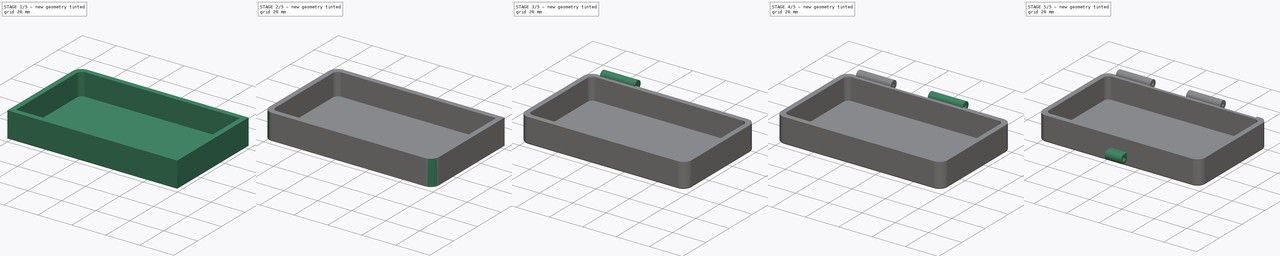
[diagram: build sequence overview — one tinted view per stage of 5, left to right]
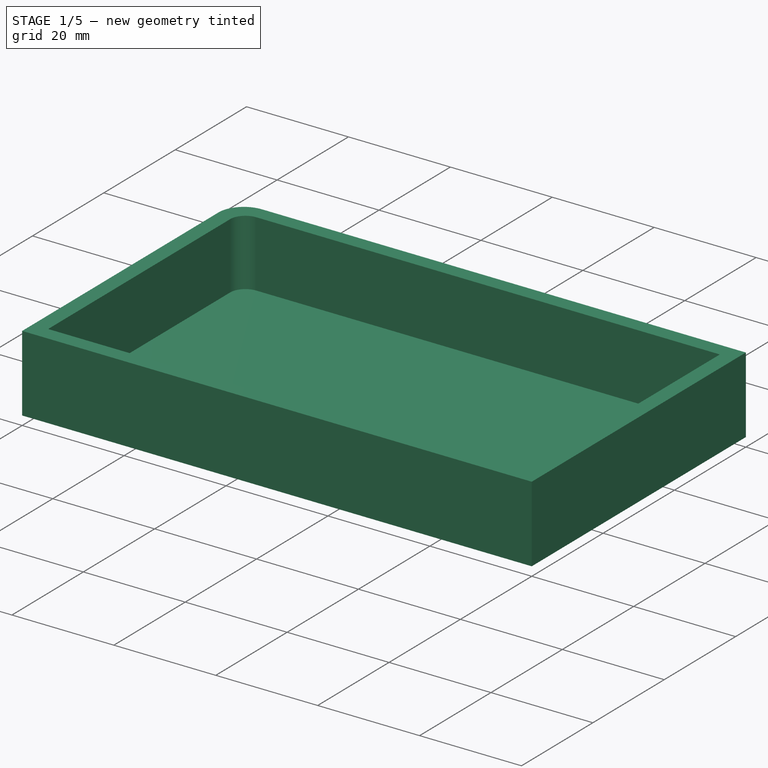
[diagram: stage 1 of 5 — iso view after this stage's code; geometry added in this stage tinted green]
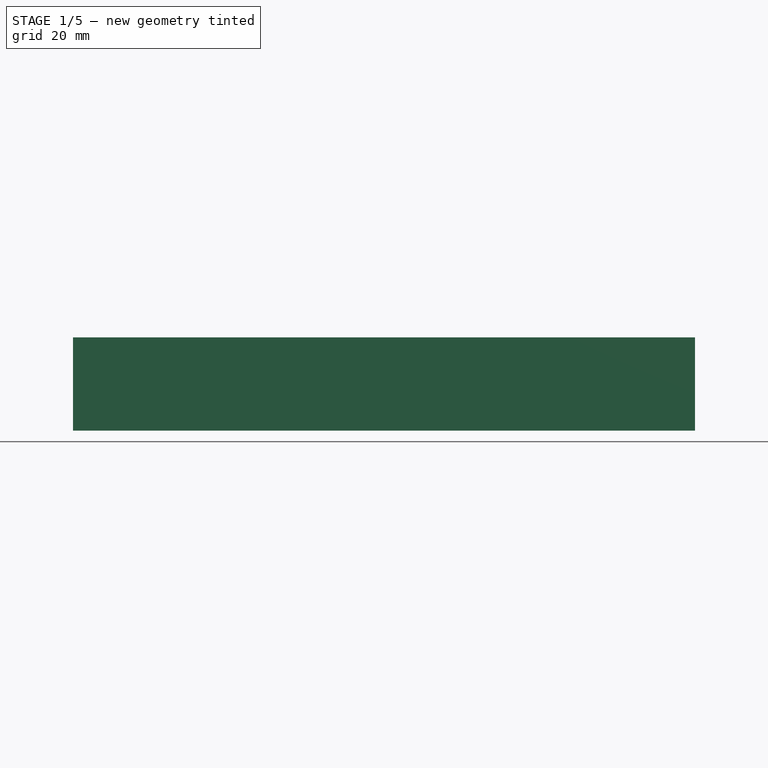
[diagram: stage 1 of 5 — front view after this stage's code; geometry added in this stage tinted green]
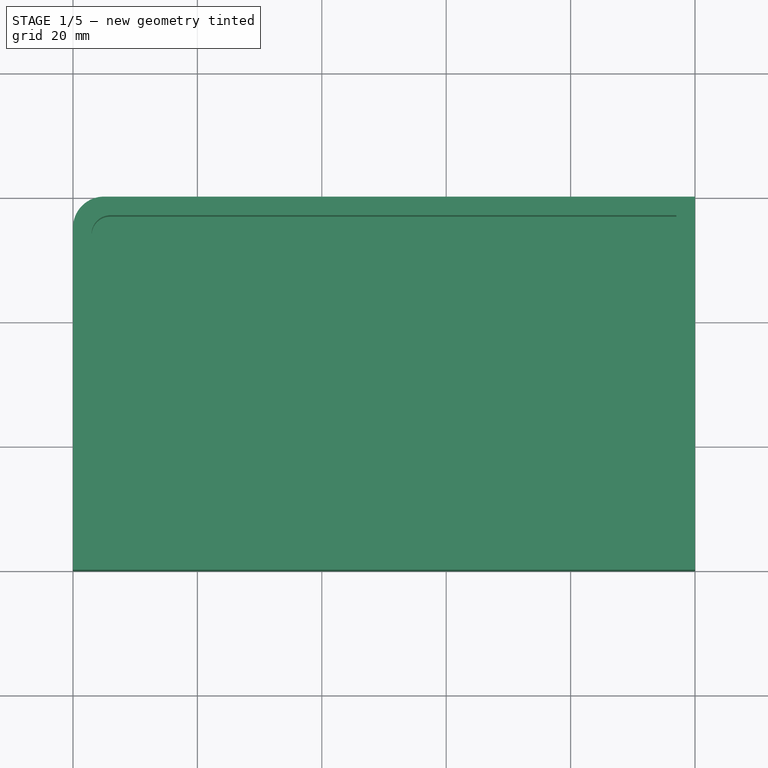
[diagram: stage 1 of 5 — top view after this stage's code; geometry added in this stage tinted green]
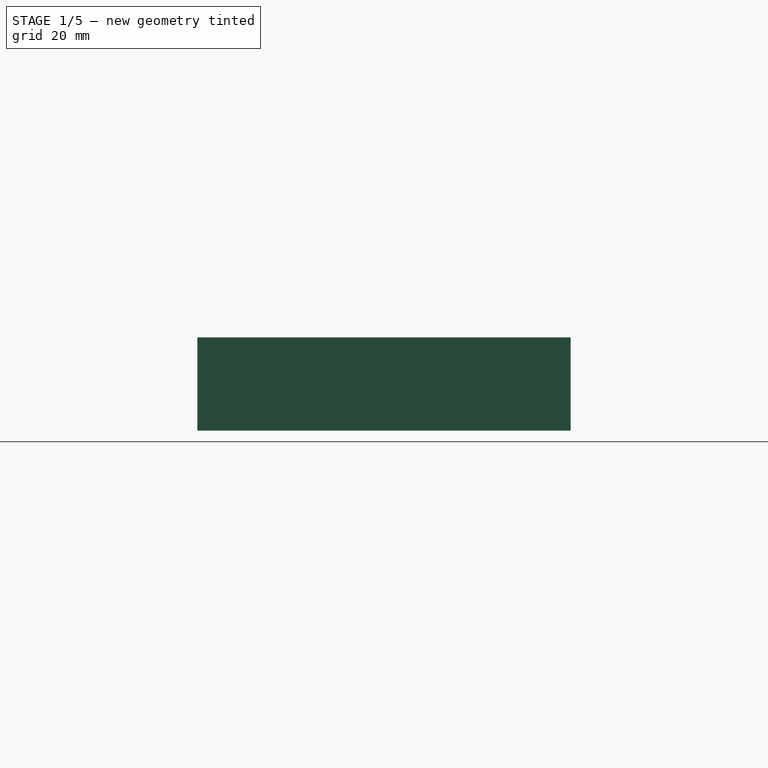
[diagram: stage 1 of 5 — right view after this stage's code; geometry added in this stage tinted green]
FCSTD DOCUMENT  (FreeCAD 0.19R24291 (Git))
Label: funnybox
License: All rights reserved
LicenseURL: http://en.wikipedia.org/wiki/All_rights_reserved
objects: PartDesign::Fillet×9, Sketcher::SketchObject×8, PartDesign::AdditiveCylinder×3, PartDesign::Hole×3, PartDesign::Pad×2, PartDesign::SubtractiveCylinder×2, PartDesign::Pocket×1, PartDesign::Body×1
note: 49 computed .brp shape members not serialized (recipe doc carries the construction recipe); baked Part::Feature solids carry a one-line shape summary decoded from their .brp

FEATURE [Sketcher::SketchObject] Sketch
  FullyConstrained = true
  MapMode = 5
  Support = -> [XY_Plane]
  sketch-geometry (4):
    g0: LineSegment StartX=0 StartY=0 StartZ=0 EndX=100 EndY=0 EndZ=0
    g1: LineSegment StartX=100 StartY=0 StartZ=0 EndX=100 EndY=60 EndZ=0
    g2: LineSegment StartX=100 StartY=60 StartZ=0 EndX=0 EndY=60 EndZ=0
    g3: LineSegment StartX=0 StartY=60 StartZ=0 EndX=0 EndY=0 EndZ=0
  constraints (11):
    c: Coincident(g0,g1)
    c: Coincident(g1,g2)
    c: Coincident(g2,g3)
    c: Coincident(g3,g0)
    c: Horizontal(g0)
    c: Horizontal(g2)
    c: Vertical(g1)
    c: Vertical(g3)
    c: Coincident(g0,g-1)
    c: DistanceY(g3,g3) = 60
    c: DistanceX(g2,g2) = 100
FEATURE [PartDesign::Pad] Pad  label="Main height"
  Direction = (1,1,1)
  Length = 15
  Length2 = 100
  Profile = -> Sketch
  Type = 0
FEATURE [Sketcher::SketchObject] Sketch001
  FullyConstrained = true
  MapMode = 5
  Placement = pos=(0,0,15) rot=(0,0,1;0rad)
  Support = -> [Pad]
  sketch-geometry (4):
    g0: LineSegment StartX=3 StartY=3 StartZ=0 EndX=97 EndY=3 EndZ=0
    g1: LineSegment StartX=97 StartY=3 StartZ=0 EndX=97 EndY=57 EndZ=0
    g2: LineSegment StartX=97 StartY=57 StartZ=0 EndX=3 EndY=57 EndZ=0
    g3: LineSegment StartX=3 StartY=57 StartZ=0 EndX=3 EndY=3 EndZ=0
  constraints (12):
    c: Coincident(g0,g1)
    c: Coincident(g1,g2)
    c: Coincident(g2,g3)
    c: Coincident(g3,g0)
    c: Horizontal(g0)
    c: Horizontal(g2)
    c: Vertical(g1)
    c: Vertical(g3)
    c: DistanceX(g0) = 3
    c: DistanceY(g0) = 3
    c: DistanceX(g0,g0) = 94
    c: DistanceY(g3,g3) = 54
FEATURE [PartDesign::Pocket] Pocket
  BaseFeature = -> Pad
  Length = 13
  Length2 = 100
  Profile = -> Sketch001
  Type = 0
FEATURE [PartDesign::Fillet] Fillet  label="SQ1 Inner"
  Base = -> Pocket [Edge22]
  BaseFeature = -> Pocket
  Radius = 3
  SupportTransform = false
FEATURE [PartDesign::Fillet] Fillet001  label="SQ1 Outer"
  Base = -> Fillet [Edge23]
  BaseFeature = -> Fillet
  Radius = 5
  SupportTransform = false
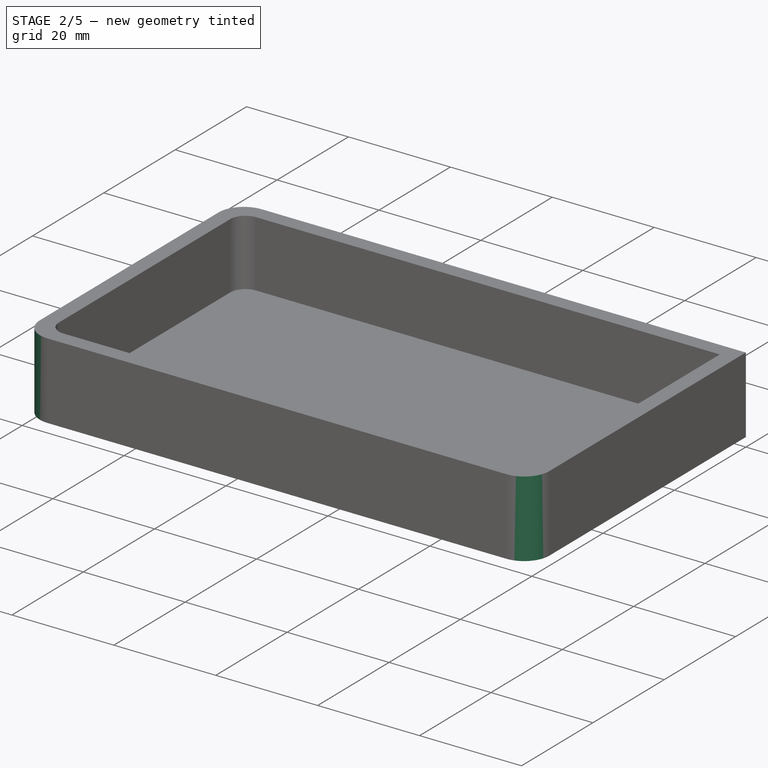
[diagram: stage 2 of 5 — iso view after this stage's code; geometry added in this stage tinted green]
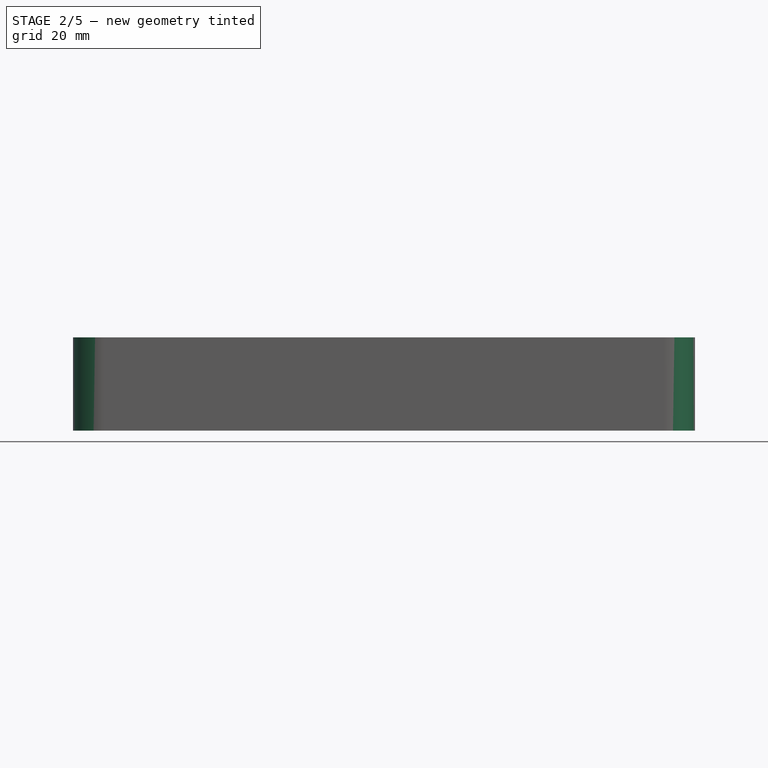
[diagram: stage 2 of 5 — front view after this stage's code; geometry added in this stage tinted green]
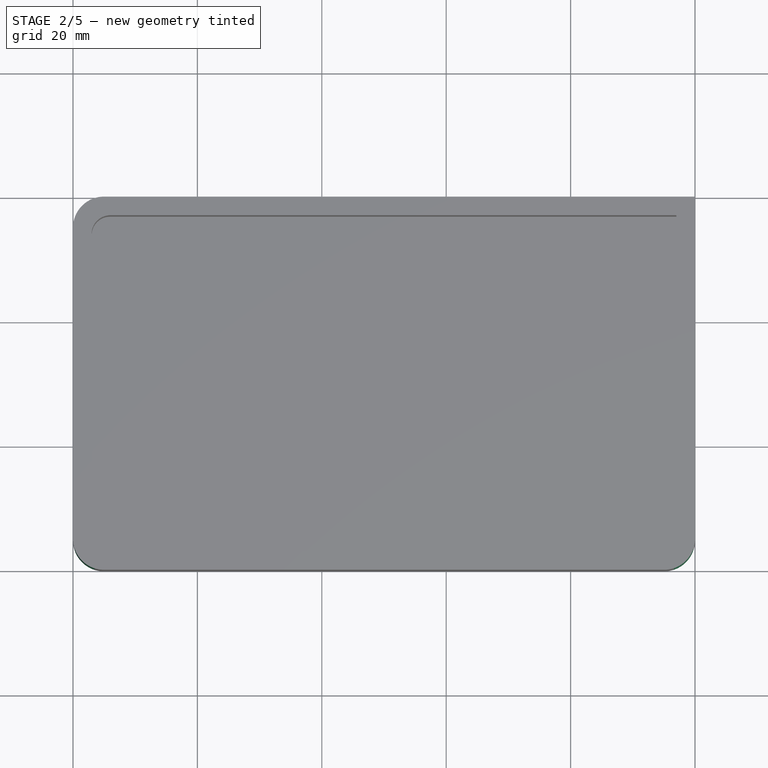
[diagram: stage 2 of 5 — top view after this stage's code; geometry added in this stage tinted green]
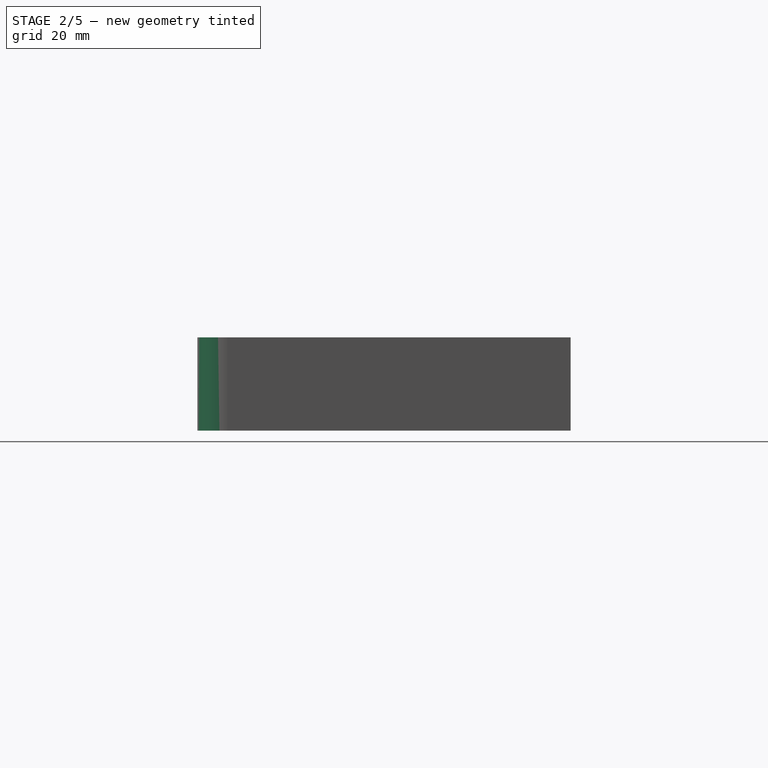
[diagram: stage 2 of 5 — right view after this stage's code; geometry added in this stage tinted green]
FEATURE [PartDesign::Fillet] Fillet002  label="SQ2 Inner"
  Base = -> Fillet001 [Edge28]
  BaseFeature = -> Fillet001
  Radius = 3
  SupportTransform = false
FEATURE [PartDesign::Fillet] Fillet003  label="SQ2 Outer"
  Base = -> Fillet002 [Edge26]
  BaseFeature = -> Fillet002
  Radius = 5
  SupportTransform = false
FEATURE [PartDesign::Fillet] Fillet004  label="SQ3 Inner"
  Base = -> Fillet003 [Edge32]
  BaseFeature = -> Fillet003
  Radius = 3
  SupportTransform = false
FEATURE [PartDesign::Fillet] Fillet005  label="SQ3 Outer"
  Base = -> Fillet004 [Edge36]
  BaseFeature = -> Fillet004
  Radius = 5
  SupportTransform = false
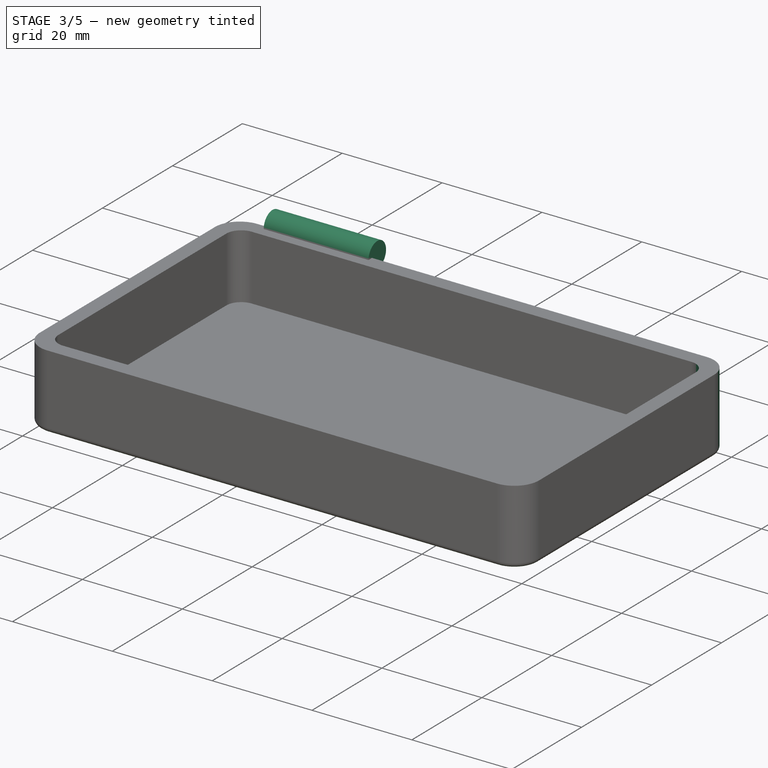
[diagram: stage 3 of 5 — iso view after this stage's code; geometry added in this stage tinted green]
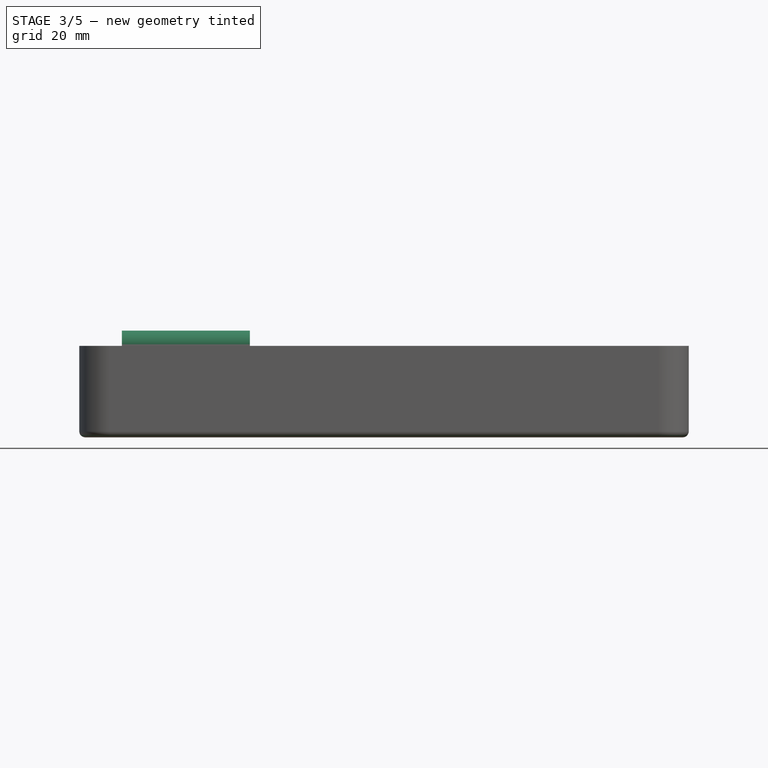
[diagram: stage 3 of 5 — front view after this stage's code; geometry added in this stage tinted green]
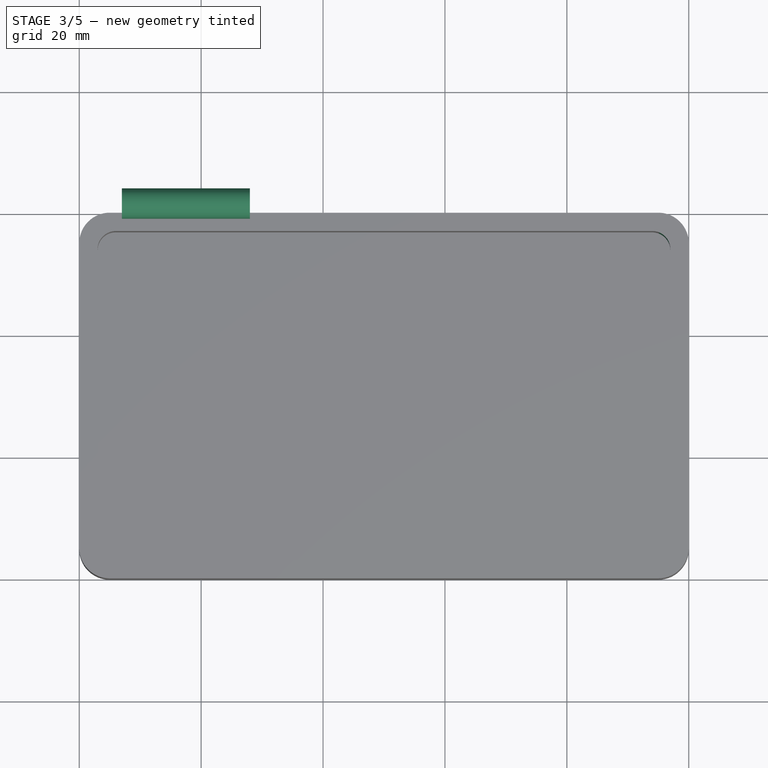
[diagram: stage 3 of 5 — top view after this stage's code; geometry added in this stage tinted green]
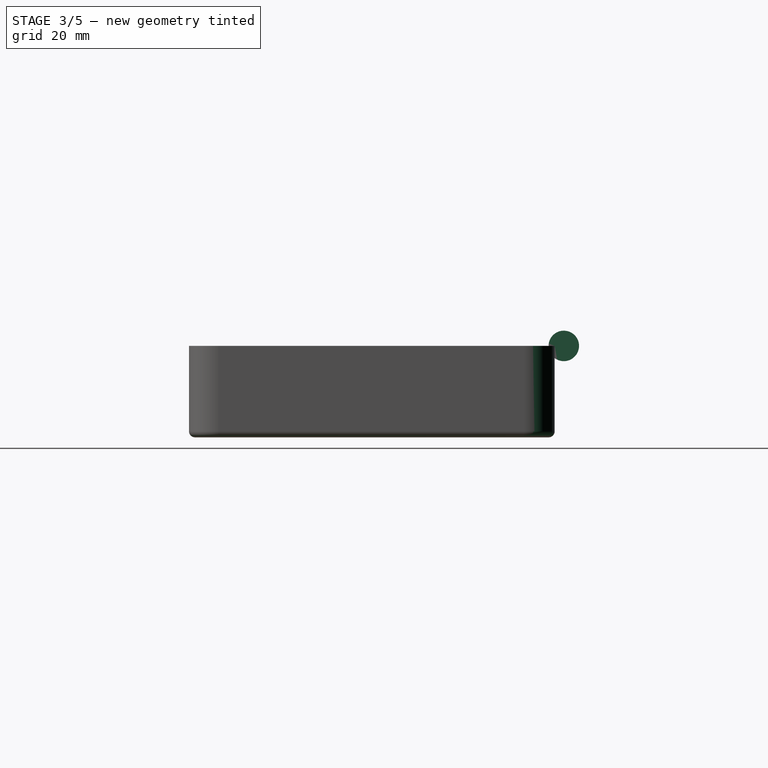
[diagram: stage 3 of 5 — right view after this stage's code; geometry added in this stage tinted green]
FEATURE [PartDesign::Fillet] Fillet006  label="SQ4 Inner"
  Base = -> Fillet005 [Edge36]
  BaseFeature = -> Fillet005
  Radius = 3
  SupportTransform = false
FEATURE [PartDesign::Fillet] Fillet007  label="SQ4 Outer"
  Base = -> Fillet006 [Edge40]
  BaseFeature = -> Fillet006
  Radius = 5
  SupportTransform = false
FEATURE [PartDesign::Fillet] Fillet008  label="Round Base"
  Base = -> Fillet007 [Edge17]
  BaseFeature = -> Fillet007
  Radius = 1
  SupportTransform = false
FEATURE [Sketcher::SketchObject] Sketch003
  FullyConstrained = true
  MapMode = 5
  Placement = pos=(0,0,15.5) rot=(0,0,1;0rad)
  sketch-geometry (1):
    g0: LineSegment StartX=7 StartY=61.5 StartZ=0 EndX=24.2 EndY=61.5 EndZ=0
  constraints (4):
    c: Horizontal(g0)
    c: DistanceX(g0) = 7
    c: DistanceY(g0) = 61.5
    c: DistanceX(g0,g0) = 17.2
FEATURE [PartDesign::AdditiveCylinder] Cylinder
  Angle = 360
  AttacherType = Attacher::AttachEngine3D
  AttachmentOffset = pos=(0,-0.5,-21) rot=(0,0,1;0rad)
  BaseFeature = -> Fillet008
  Height = 21
  MapMode = 7
  Placement = pos=(28,61.5,15) rot=(0.57735,-0.57735,-0.57735;2.0944rad)
  Radius = 2.5
  Support = -> [Sketch003]
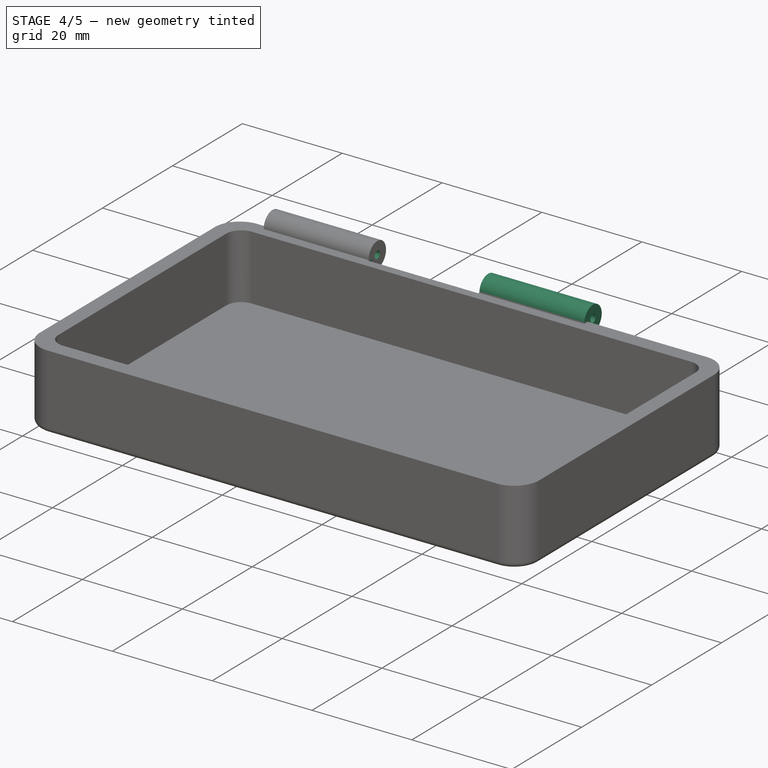
[diagram: stage 4 of 5 — iso view after this stage's code; geometry added in this stage tinted green]
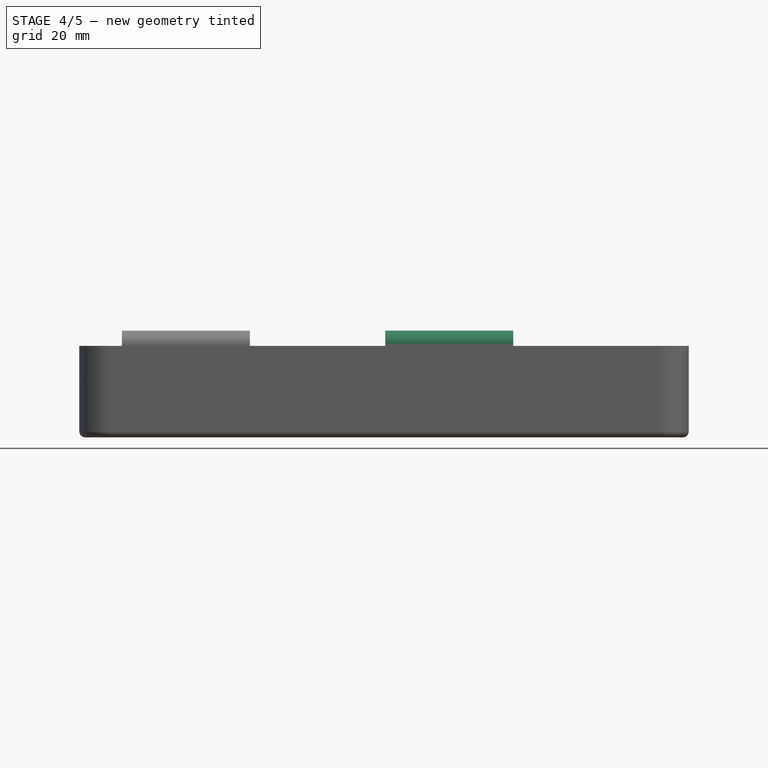
[diagram: stage 4 of 5 — front view after this stage's code; geometry added in this stage tinted green]
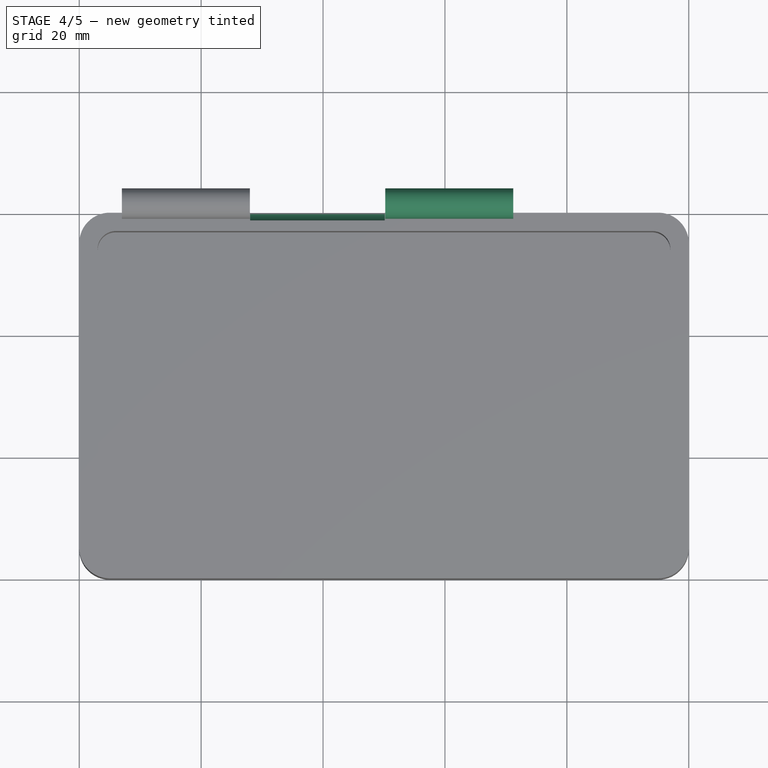
[diagram: stage 4 of 5 — top view after this stage's code; geometry added in this stage tinted green]
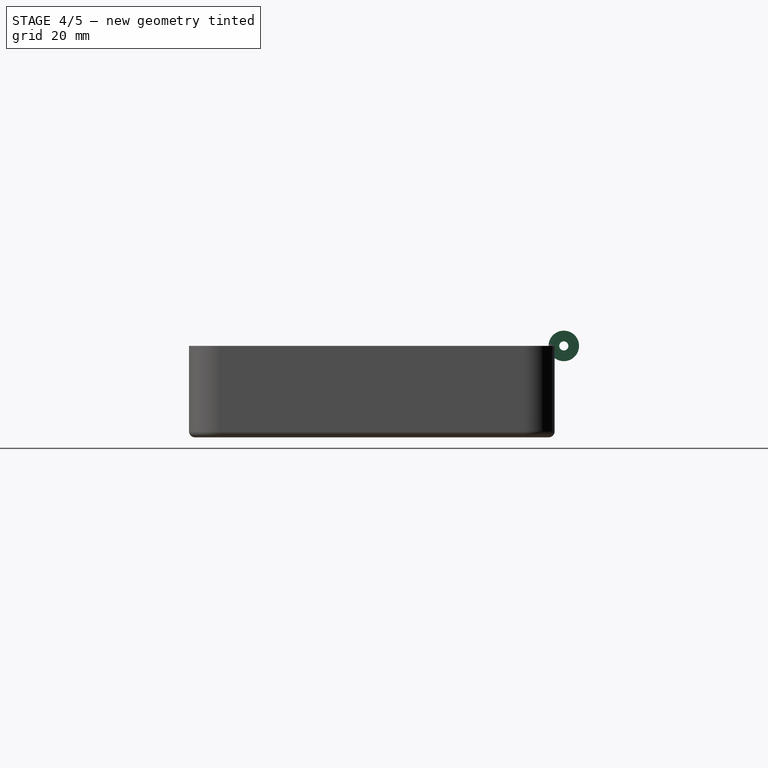
[diagram: stage 4 of 5 — right view after this stage's code; geometry added in this stage tinted green]
FEATURE [Sketcher::SketchObject] Sketch004
  FullyConstrained = true
  MapMode = 5
  Placement = pos=(0,0,15.5) rot=(0,0,1;0rad)
  sketch-geometry (1):
    g0: LineSegment StartX=50 StartY=61.5 StartZ=0 EndX=67.2 EndY=61.5 EndZ=0
  constraints (4):
    c: Horizontal(g0)
    c: DistanceX(g0) = 50
    c: DistanceY(g0) = 61.5
    c: DistanceX(g0,g0) = 17.2
FEATURE [PartDesign::Hole] Hole
  BaseFeature = -> Cylinder
  Depth = 25
  DepthType = 0
  Diameter = 1.5
  DrillForDepth = false
  DrillPoint = 1
  DrillPointAngle = 118
  HoleCutCountersinkAngle = 90
  HoleCutCustomValues = false
  HoleCutDepth = 0
  HoleCutDiameter = 6.1
  HoleCutType = 0
  ModelActualThread = false
  Placement = pos=(28,61.5,15) rot=(0.57735,-0.57735,-0.57735;2.0944rad)
  Profile = -> Cylinder [Face16]
  Tapered = false
  TaperedAngle = 90
  ThreadAngle = 0
  ThreadClass = 0
  ThreadCutOffInner = 0
  ThreadCutOffOuter = 0
  ThreadDirection = 0
  ThreadFit = 0
  ThreadPitch = 0
  ThreadSize = 0
  ThreadType = 0
  Threaded = false
FEATURE [PartDesign::AdditiveCylinder] Cylinder001
  Angle = 360
  AttacherType = Attacher::AttachEngine3D
  AttachmentOffset = pos=(0,-0.5,-21.2) rot=(0,0,1;0rad)
  BaseFeature = -> Hole
  Height = 21
  MapMode = 7
  Placement = pos=(71.2,61.5,15) rot=(0.57735,-0.57735,-0.57735;2.0944rad)
  Radius = 2.5
  Support = -> [Sketch004]
FEATURE [PartDesign::Hole] Hole001
  BaseFeature = -> Cylinder001
  Depth = 25
  DepthType = 0
  Diameter = 1.5
  DrillForDepth = false
  DrillPoint = 1
  DrillPointAngle = 118
  HoleCutCountersinkAngle = 90
  HoleCutCustomValues = false
  HoleCutDepth = 0
  HoleCutDiameter = 6.1
  HoleCutType = 0
  ModelActualThread = false
  Placement = pos=(71.2,61.5,15) rot=(0.57735,-0.57735,-0.57735;2.0944rad)
  Profile = -> Cylinder001 [Face19]
  Tapered = false
  TaperedAngle = 90
  ThreadAngle = 0
  ThreadClass = 0
  ThreadCutOffInner = 0
  ThreadCutOffOuter = 0
  ThreadDirection = 0
  ThreadFit = 0
  ThreadPitch = 0
  ThreadSize = 0
  ThreadType = 0
  Threaded = false
FEATURE [Sketcher::SketchObject] Sketch005
  FullyConstrained = false
  MapMode = 5
  Placement = pos=(71.2,61.5,15) rot=(0,0,1;1.5708rad)
  Support = -> [Hole001]
  sketch-geometry (1):
    g0: LineSegment StartX=0 StartY=43.15 StartZ=0 EndX=0 EndY=21.05 EndZ=0
  constraints (3):
    c: DistanceX(g0) = 0
    c: DistanceY(g0) = 43.15
    c: DistanceY(g0,g0) = 22.1
FEATURE [PartDesign::SubtractiveCylinder] Cylinder002
  Angle = 360
  AttacherType = Attacher::AttachEngine3D
  AttachmentOffset = pos=(0,0,-22.08) rot=(0,0,1;0rad)
  BaseFeature = -> Hole001
  Height = 22.1
  MapMode = 7
  Placement = pos=(50.13,61.5,15) rot=(0.57735,-0.57735,-0.57735;2.0944rad)
  Radius = 2.75
  Support = -> [Sketch005]
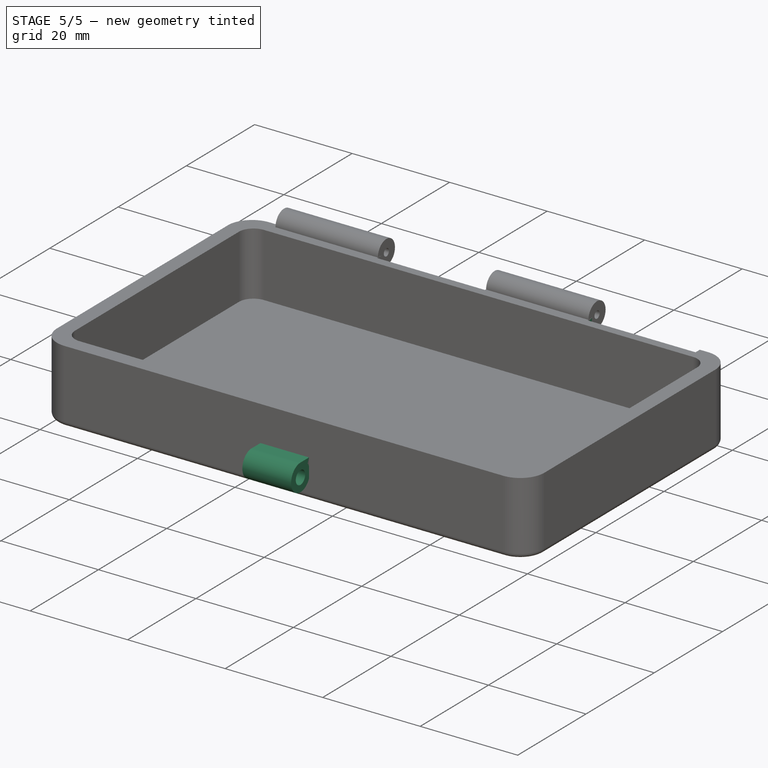
[diagram: stage 5 of 5 — iso view after this stage's code; geometry added in this stage tinted green]
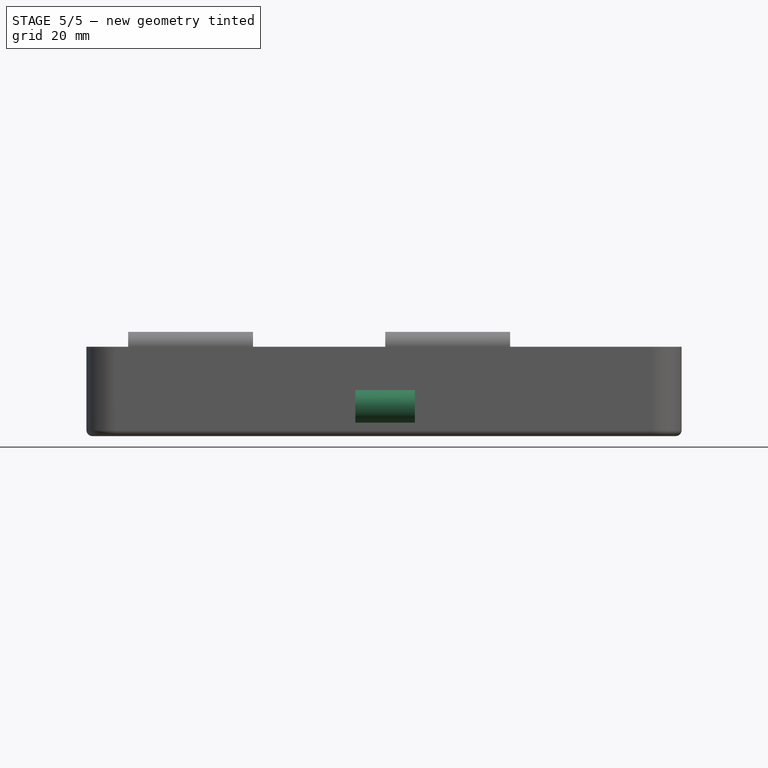
[diagram: stage 5 of 5 — front view after this stage's code; geometry added in this stage tinted green]
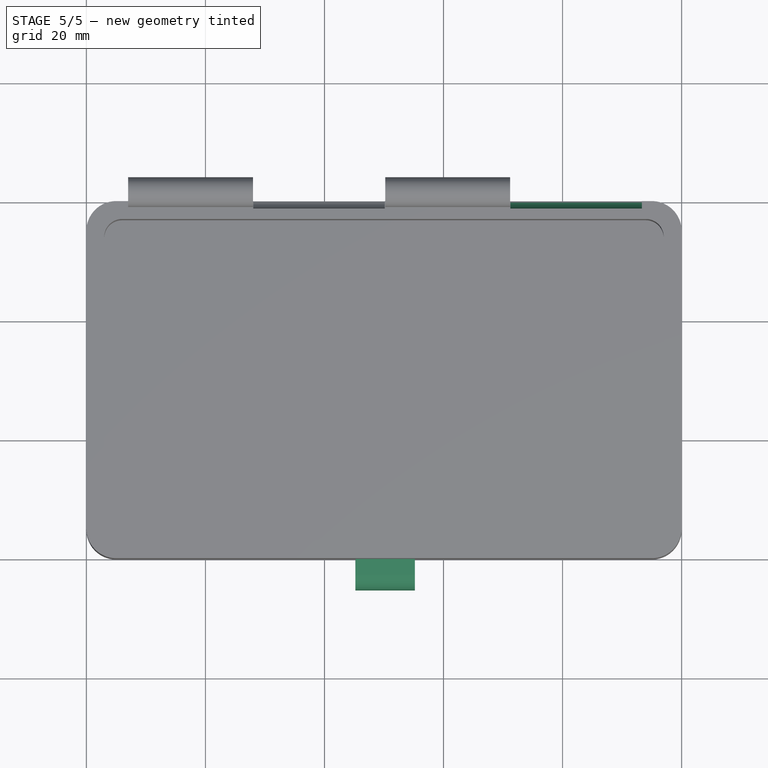
[diagram: stage 5 of 5 — top view after this stage's code; geometry added in this stage tinted green]
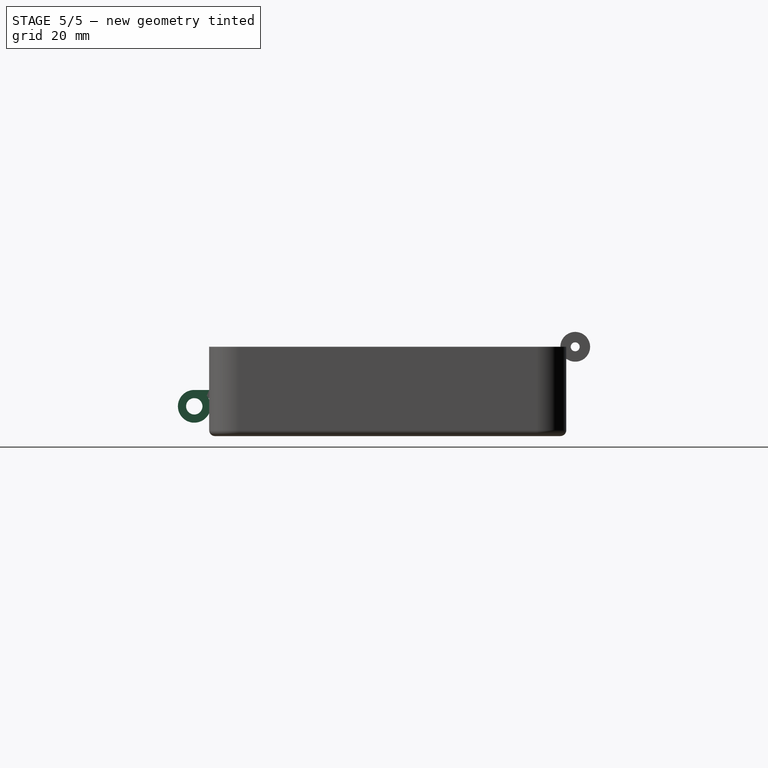
[diagram: stage 5 of 5 — right view after this stage's code; geometry added in this stage tinted green]
FEATURE [Sketcher::SketchObject] Sketch006
  FullyConstrained = false
  MapMode = 5
  Placement = pos=(50.13,61.5,15) rot=(0,0,1;1.5708rad)
  Support = -> [Cylinder002]
  sketch-geometry (1):
    g0: LineSegment StartX=0 StartY=-21.2 StartZ=0 EndX=0 EndY=-43.45 EndZ=0
  constraints (3):
    c: DistanceX(g0) = 0
    c: DistanceY(g0) = -21.2
    c: DistanceY(g0,g0) = 22.25
FEATURE [PartDesign::SubtractiveCylinder] Cylinder003
  Angle = 360
  AttacherType = Attacher::AttachEngine3D
  AttachmentOffset = pos=(0,0,-22) rot=(0,0,1;0rad)
  BaseFeature = -> Cylinder002
  Height = 22.1
  MapMode = 7
  Placement = pos=(93.33,61.5,15) rot=(0.57735,-0.57735,-0.57735;2.0944rad)
  Radius = 2.75
  Support = -> [Sketch006]
FEATURE [Sketcher::SketchObject] Sketch007
  FullyConstrained = true
  MapMode = 5
  Placement = pos=(93.33,-2.842e-13,15) rot=(0.57735,-0.57735,0.57735;2.0944rad)
  Support = -> [Cylinder003]
  sketch-geometry (4):
    g0: LineSegment StartX=-8.65 StartY=48.1 StartZ=0 EndX=-7.25 EndY=48.1 EndZ=0
    g1: LineSegment StartX=-7.25 StartY=48.1 StartZ=0 EndX=-7.25 EndY=38.14 EndZ=0
    g2: LineSegment StartX=-7.25 StartY=38.14 StartZ=0 EndX=-8.65 EndY=38.14 EndZ=0
    g3: LineSegment StartX=-8.65 StartY=38.14 StartZ=0 EndX=-8.65 EndY=48.1 EndZ=0
  constraints (12):
    c: Coincident(g0,g1)
    c: Coincident(g1,g2)
    c: Coincident(g2,g3)
    c: Coincident(g3,g0)
    c: Horizontal(g0)
    c: Horizontal(g2)
    c: Vertical(g1)
    c: Vertical(g3)
    c: DistanceX(g0) = -8.65
    c: DistanceY(g0) = 48.1
    c: DistanceY(g1,g1) = 9.96
    c: DistanceX(g0,g0) = 1.4
FEATURE [Sketcher::SketchObject] Sketch009
  FullyConstrained = false
  MapMode = 5
  Placement = pos=(93.33,-2,15) rot=(0.57735,-0.57735,0.57735;2.0944rad)
  sketch-geometry (1):
    g0: LineSegment StartX=-10 StartY=48.1 StartZ=0 EndX=-10 EndY=38.1129 EndZ=0
  constraints (3):
    c: Vertical(g0)
    c: DistanceX(g0) = -10
    c: DistanceY(g0) = 48.1
FEATURE [PartDesign::AdditiveCylinder] Cylinder004
  Angle = 360
  AttacherType = Attacher::AttachEngine3D
  AttachmentOffset = pos=(0.5,0,-9.96) rot=(0,0,1;0rad)
  BaseFeature = -> Cylinder003
  Height = 10
  MapMode = 7
  Placement = pos=(55.19,-2.5,5) rot=(0.57735,-0.57735,-0.57735;2.0944rad)
  Radius = 2.75
  Support = -> [Sketch009]
FEATURE [PartDesign::Hole] Hole002
  BaseFeature = -> Cylinder004
  Depth = 25
  DepthType = 0
  Diameter = 2.75
  DrillForDepth = false
  DrillPoint = 1
  DrillPointAngle = 118
  HoleCutCountersinkAngle = 90
  HoleCutCustomValues = false
  HoleCutDepth = 0
  HoleCutDiameter = 6.1
  HoleCutType = 0
  ModelActualThread = false
  Placement = pos=(55.19,-2.5,5) rot=(0.57735,-0.57735,-0.57735;2.0944rad)
  Profile = -> Cylinder004 [Face39]
  Tapered = false
  TaperedAngle = 90
  ThreadAngle = 0
  ThreadClass = 0
  ThreadCutOffInner = 0
  ThreadCutOffOuter = 0
  ThreadDirection = 0
  ThreadFit = 0
  ThreadPitch = 0
  ThreadSize = 0
  ThreadType = 0
  Threaded = false
FEATURE [PartDesign::Pad] Pad001
  BaseFeature = -> Hole002
  Direction = (1,1,1)
  Length = 2.5
  Length2 = 100
  Placement = pos=(55.19,-2.5,5) rot=(0.57735,-0.57735,-0.57735;2.0944rad)
  Profile = -> Sketch007
  Type = 0
FEATURE [PartDesign::Body] Body
  Group = -> [Sketch,Pad,Sketch001,Pocket,Fillet,Fillet001,Fillet002,Fillet003,Fillet004,Fillet005,Fillet006,Fillet007,Fillet008,Cylinder,Sketch004,Hole,Sketch003,Cylinder001,Hole001,Sketch005,Cylinder002,Sketch006,Cylinder003,Sketch007,Sketch009,Cylinder004,Hole002,Pad001]
  Origin = -> Origin
  Tip = -> Pad001
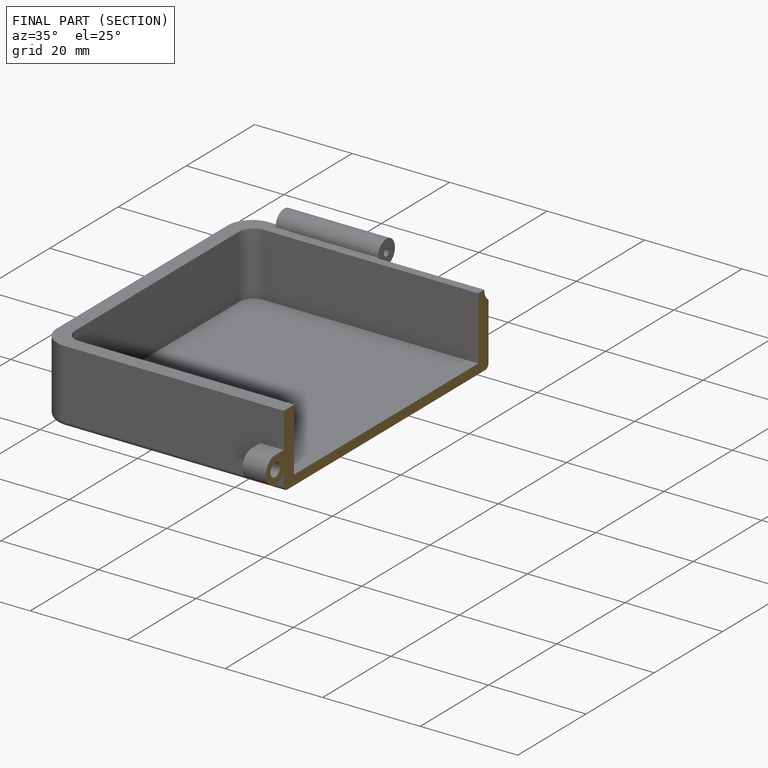
[diagram: finished part — half-section view (interior)]
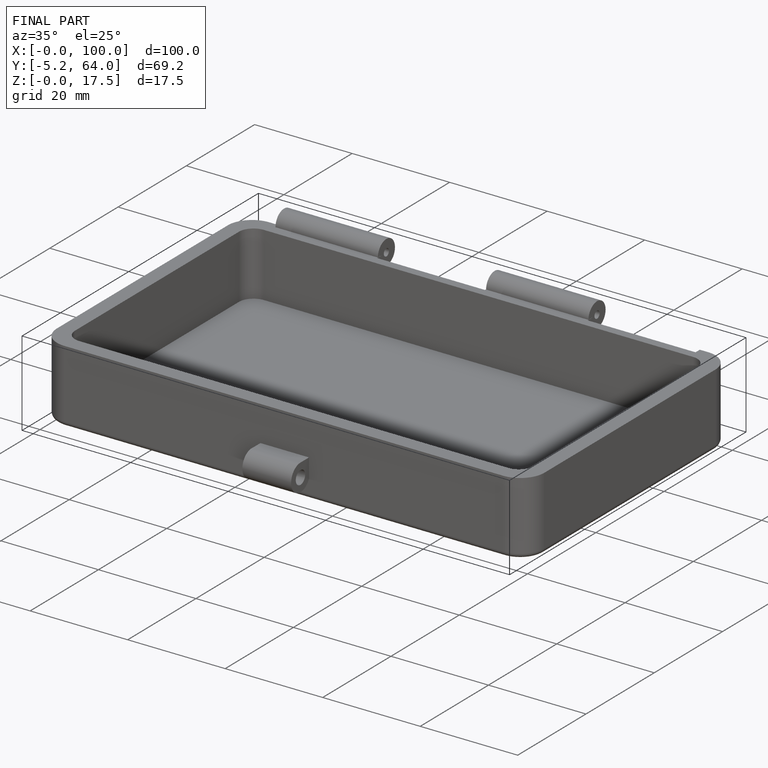
[diagram: finished part — iso view with bounding-box wireframe]
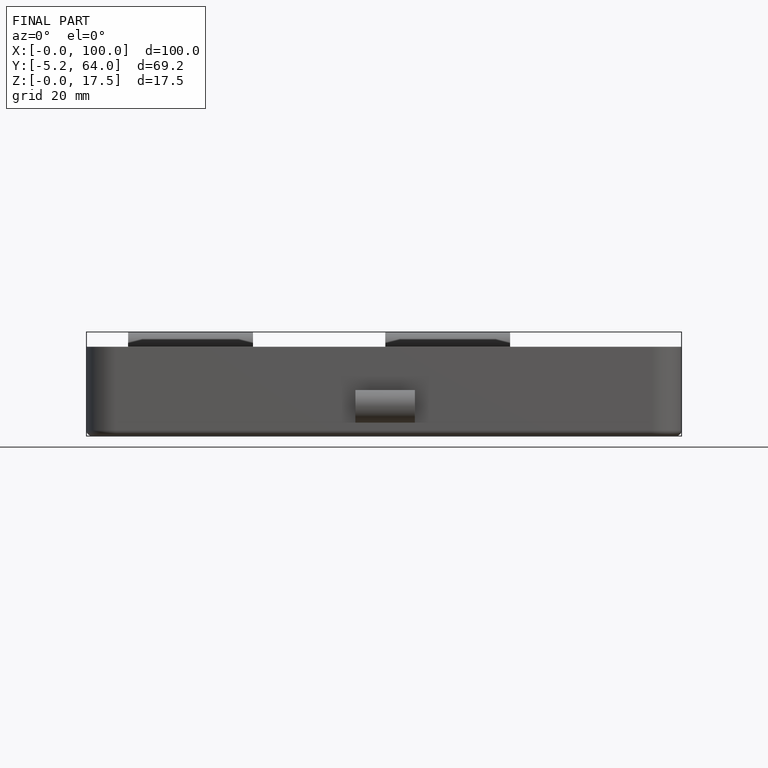
[diagram: finished part — front view with bounding-box wireframe]
